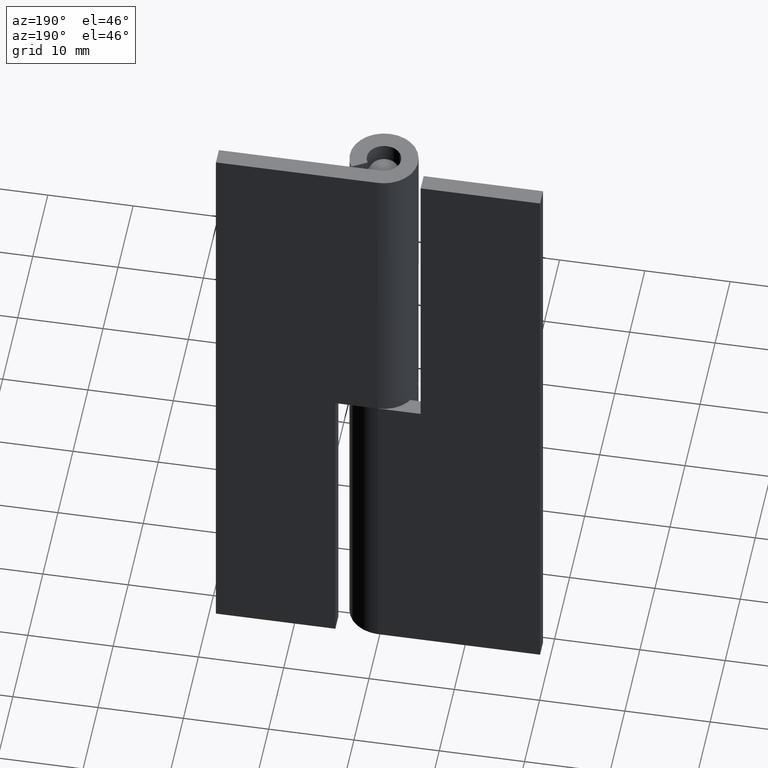
[diagram: clean part render]
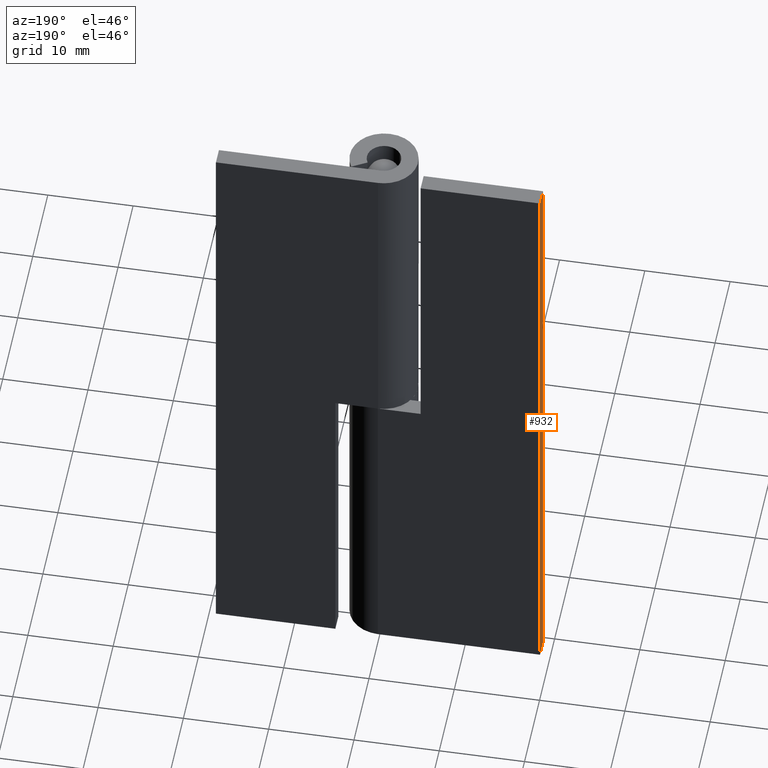
[diagram: same view with one face highlighted and labeled with its STEP entity id]
A machine part, auxiliary view. The second image highlights one B-rep face of the part: STEP entity #932.
In plain terms, the highlighted face is a freeform B-spline surface patch.
Its self-contained STEP definition (entity closure, byte-faithful):
#812=CARTESIAN_POINT('',(-19.0,2.0,75.0));
#813=VERTEX_POINT('',#812);
#820=CARTESIAN_POINT('',(-19.0,4.0,75.0));
#821=VERTEX_POINT('',#820);
#827=CARTESIAN_POINT('',(-19.0,2.0,75.0));
#828=CARTESIAN_POINT('',(-19.0,4.0,75.0));
#829=QUASI_UNIFORM_CURVE('',1,(#827,#828),.UNSPECIFIED.,.F.,.U.);
#830=EDGE_CURVE('',#813,#821,#829,.T.);
#840=CARTESIAN_POINT('',(-19.0,4.0,0.0));
#841=VERTEX_POINT('',#840);
#898=CARTESIAN_POINT('',(-19.0,2.0,0.0));
#899=VERTEX_POINT('',#898);
#905=CARTESIAN_POINT('',(-19.0,2.0,0.0));
#906=CARTESIAN_POINT('',(-19.0,4.0,0.0));
#907=QUASI_UNIFORM_CURVE('',1,(#905,#906),.UNSPECIFIED.,.F.,.U.);
#908=EDGE_CURVE('',#899,#841,#907,.T.);
#913=CARTESIAN_POINT('',(-19.0,1.900100003876388,78.746249854635451));
#914=CARTESIAN_POINT('',(-19.0,1.900100003876388,-3.746251866292208));
#915=CARTESIAN_POINT('',(-19.0,4.099900049767792,78.746249854635451));
#916=CARTESIAN_POINT('',(-19.0,4.099900049767792,-3.746251866292208));
#917=B_SPLINE_SURFACE_WITH_KNOTS('',1,1,((#913,#915),(#914,#916)),.UNSPECIFIED.,.F.,.F.,.U.,(2,2),(2,2),(0.0,82.492501720927663),(0.0,2.199800045891404),.UNSPECIFIED.);
#918=ORIENTED_EDGE('',*,*,#830,.T.);
#919=CARTESIAN_POINT('',(-19.0,4.0,0.0));
#920=CARTESIAN_POINT('',(-19.0,4.0,75.0));
#921=QUASI_UNIFORM_CURVE('',1,(#919,#920),.UNSPECIFIED.,.F.,.U.);
#922=EDGE_CURVE('',#841,#821,#921,.T.);
#923=ORIENTED_EDGE('',*,*,#922,.F.);
#924=ORIENTED_EDGE('',*,*,#908,.F.);
#925=CARTESIAN_POINT('',(-19.0,2.0,0.0));
#926=CARTESIAN_POINT('',(-19.0,2.0,75.0));
#927=QUASI_UNIFORM_CURVE('',1,(#925,#926),.UNSPECIFIED.,.F.,.U.);
#928=EDGE_CURVE('',#899,#813,#927,.T.);
#929=ORIENTED_EDGE('',*,*,#928,.T.);
#930=EDGE_LOOP('',(#918,#923,#924,#929));
#931=FACE_OUTER_BOUND('',#930,.T.);
#932=ADVANCED_FACE('',(#931),#917,.F.);